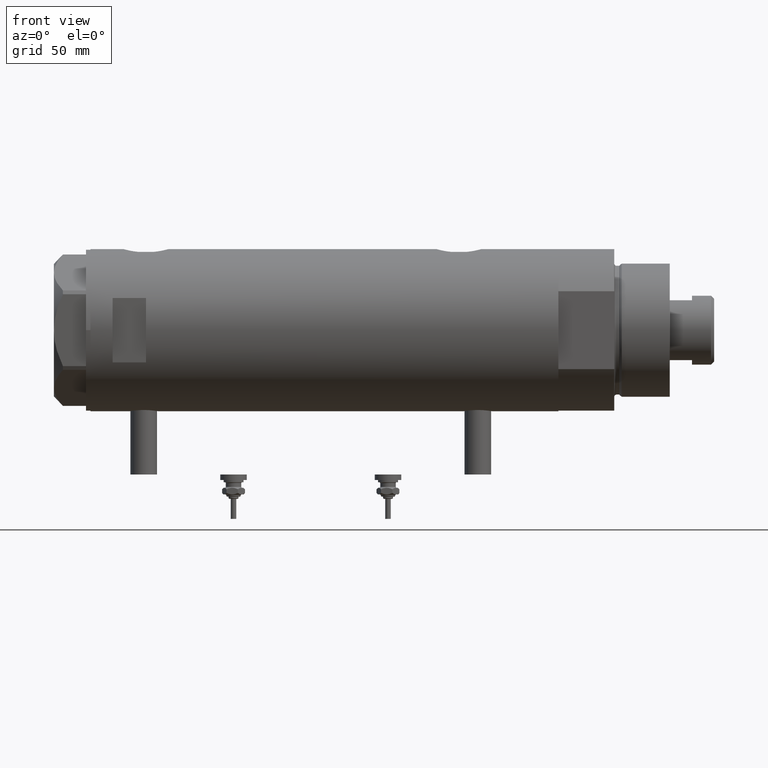
[diagram: clean part render]
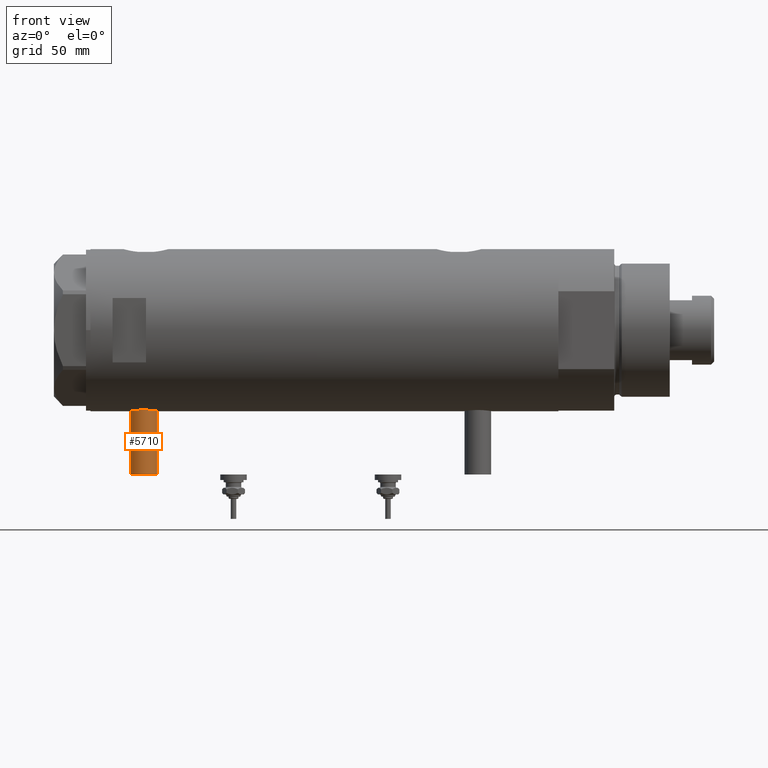
[diagram: same view with one face highlighted and labeled with its STEP entity id]
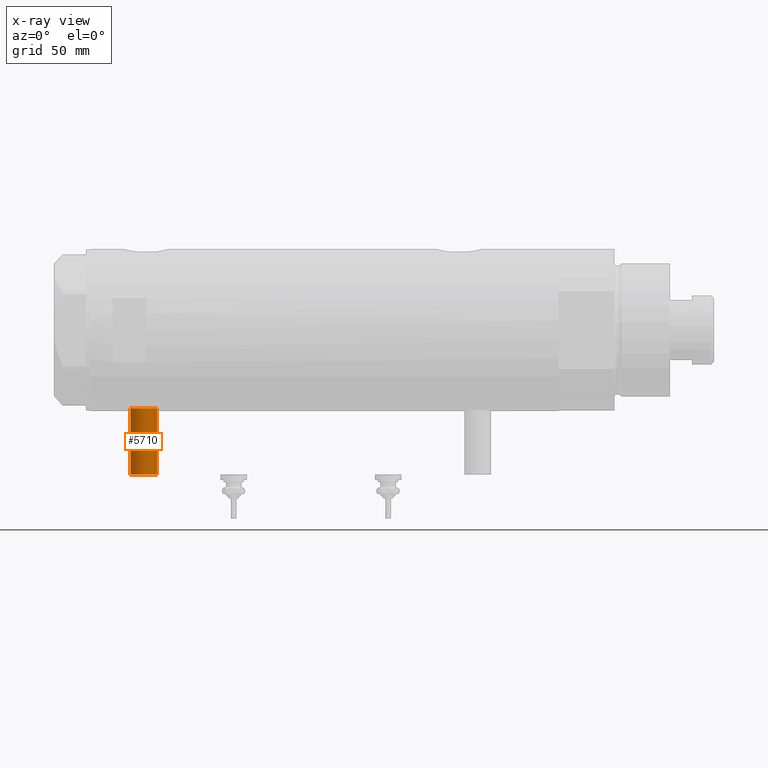
[diagram: x-ray of the same camera — body ghosted, the highlighted face saturated]
A machine part, front view. The second image highlights one B-rep face of the part: STEP entity #5710.
The next image is the same camera in x-ray: the body ghosted, the highlighted face saturated — about 0% of this face is hidden behind the body in this view.
In plain terms, the highlighted cylindrical surface (edge-blend (fillet) strip) has radius 6 mm, axis along (0, 0, 1).
Its self-contained STEP definition (entity closure, byte-faithful):
#312 = VERTEX_POINT ( 'NONE', #5831 ) ;
#502 = DIRECTION ( 'NONE',  ( 1.000000000000000000, -0.000000000000000000, -0.000000000000000000 ) ) ;
#930 = CYLINDRICAL_SURFACE ( 'NONE', #5266, 5.999999999999991118 ) ;
#941 = AXIS2_PLACEMENT_3D ( 'NONE', #3399, #1117, #1594 ) ;
#952 = CIRCLE ( 'NONE', #4388, 5.999999999999991118 ) ;
#968 = CARTESIAN_POINT ( 'NONE',  ( -65.00000000000000000, 0.000000000000000000, 81.40000000000000568 ) ) ;
#980 = CARTESIAN_POINT ( 'NONE',  ( -35.29999999999999716, 0.000000000000000000, 81.40000000000000568 ) ) ;
#1117 = DIRECTION ( 'NONE',  ( -1.000000000000000000, 0.000000000000000000, 0.000000000000000000 ) ) ;
#1277 = LINE ( 'NONE', #4847, #3450 ) ;
#1328 = DIRECTION ( 'NONE',  ( 1.000000000000000000, -0.000000000000000000, -0.000000000000000000 ) ) ;
#1339 = VERTEX_POINT ( 'NONE', #2733 ) ;
#1371 = CARTESIAN_POINT ( 'NONE',  ( -65.00000000000000000, 7.347880794884104945E-16, 87.39999999999999147 ) ) ;
#1521 = CIRCLE ( 'NONE', #941, 5.999999999999991118 ) ;
#1594 = DIRECTION ( 'NONE',  ( 0.000000000000000000, 0.000000000000000000, 1.000000000000000000 ) ) ;
#1750 = CARTESIAN_POINT ( 'NONE',  ( -35.29999999999999716, 7.347880794884101001E-16, 87.39999999999999147 ) ) ;
#1854 = DIRECTION ( 'NONE',  ( -1.000000000000000000, 0.000000000000000000, 0.000000000000000000 ) ) ;
#2323 = ORIENTED_EDGE ( 'NONE', *, *, #3476, .T. ) ;
#2376 = DIRECTION ( 'NONE',  ( 1.000000000000000000, -0.000000000000000000, -0.000000000000000000 ) ) ;
#2433 = EDGE_CURVE ( 'NONE', #5625, #312, #1521, .T. ) ;
#2733 = CARTESIAN_POINT ( 'NONE',  ( -35.29999999999999716, 0.000000000000000000, 75.40000000000000568 ) ) ;
#2956 = ORIENTED_EDGE ( 'NONE', *, *, #2433, .F. ) ;
#3284 = DIRECTION ( 'NONE',  ( 0.000000000000000000, 0.000000000000000000, 1.000000000000000000 ) ) ;
#3299 = FACE_OUTER_BOUND ( 'NONE', #4921, .T. ) ;
#3399 = CARTESIAN_POINT ( 'NONE',  ( -65.00000000000000000, 0.000000000000000000, 81.40000000000000568 ) ) ;
#3450 = VECTOR ( 'NONE', #1328, 1000.000000000000000 ) ;
#3476 = EDGE_CURVE ( 'NONE', #1339, #4534, #952, .T. ) ;
#3555 = CARTESIAN_POINT ( 'NONE',  ( -65.00000000000000000, 0.000000000000000000, 75.40000000000000568 ) ) ;
#3641 = LINE ( 'NONE', #1371, #4671 ) ;
#3870 = ORIENTED_EDGE ( 'NONE', *, *, #5112, .F. ) ;
#4153 = DIRECTION ( 'NONE',  ( 0.000000000000000000, 0.000000000000000000, -1.000000000000000000 ) ) ;
#4388 = AXIS2_PLACEMENT_3D ( 'NONE', #980, #1854, #3284 ) ;
#4534 = VERTEX_POINT ( 'NONE', #1750 ) ;
#4671 = VECTOR ( 'NONE', #502, 1000.000000000000000 ) ;
#4847 = CARTESIAN_POINT ( 'NONE',  ( -65.00000000000000000, 0.000000000000000000, 75.40000000000000568 ) ) ;
#4921 = EDGE_LOOP ( 'NONE', ( #3870, #2956, #5024, #2323 ) ) ;
#5024 = ORIENTED_EDGE ( 'NONE', *, *, #5541, .T. ) ;
#5112 = EDGE_CURVE ( 'NONE', #312, #4534, #3641, .T. ) ;
#5266 = AXIS2_PLACEMENT_3D ( 'NONE', #968, #2376, #4153 ) ;
#5541 = EDGE_CURVE ( 'NONE', #5625, #1339, #1277, .T. ) ;
#5625 = VERTEX_POINT ( 'NONE', #3555 ) ;
#5710 = ADVANCED_FACE ( 'NONE', ( #3299 ), #930, .T. ) ;
#5831 = CARTESIAN_POINT ( 'NONE',  ( -65.00000000000000000, 7.347880794884101001E-16, 87.39999999999999147 ) ) ;